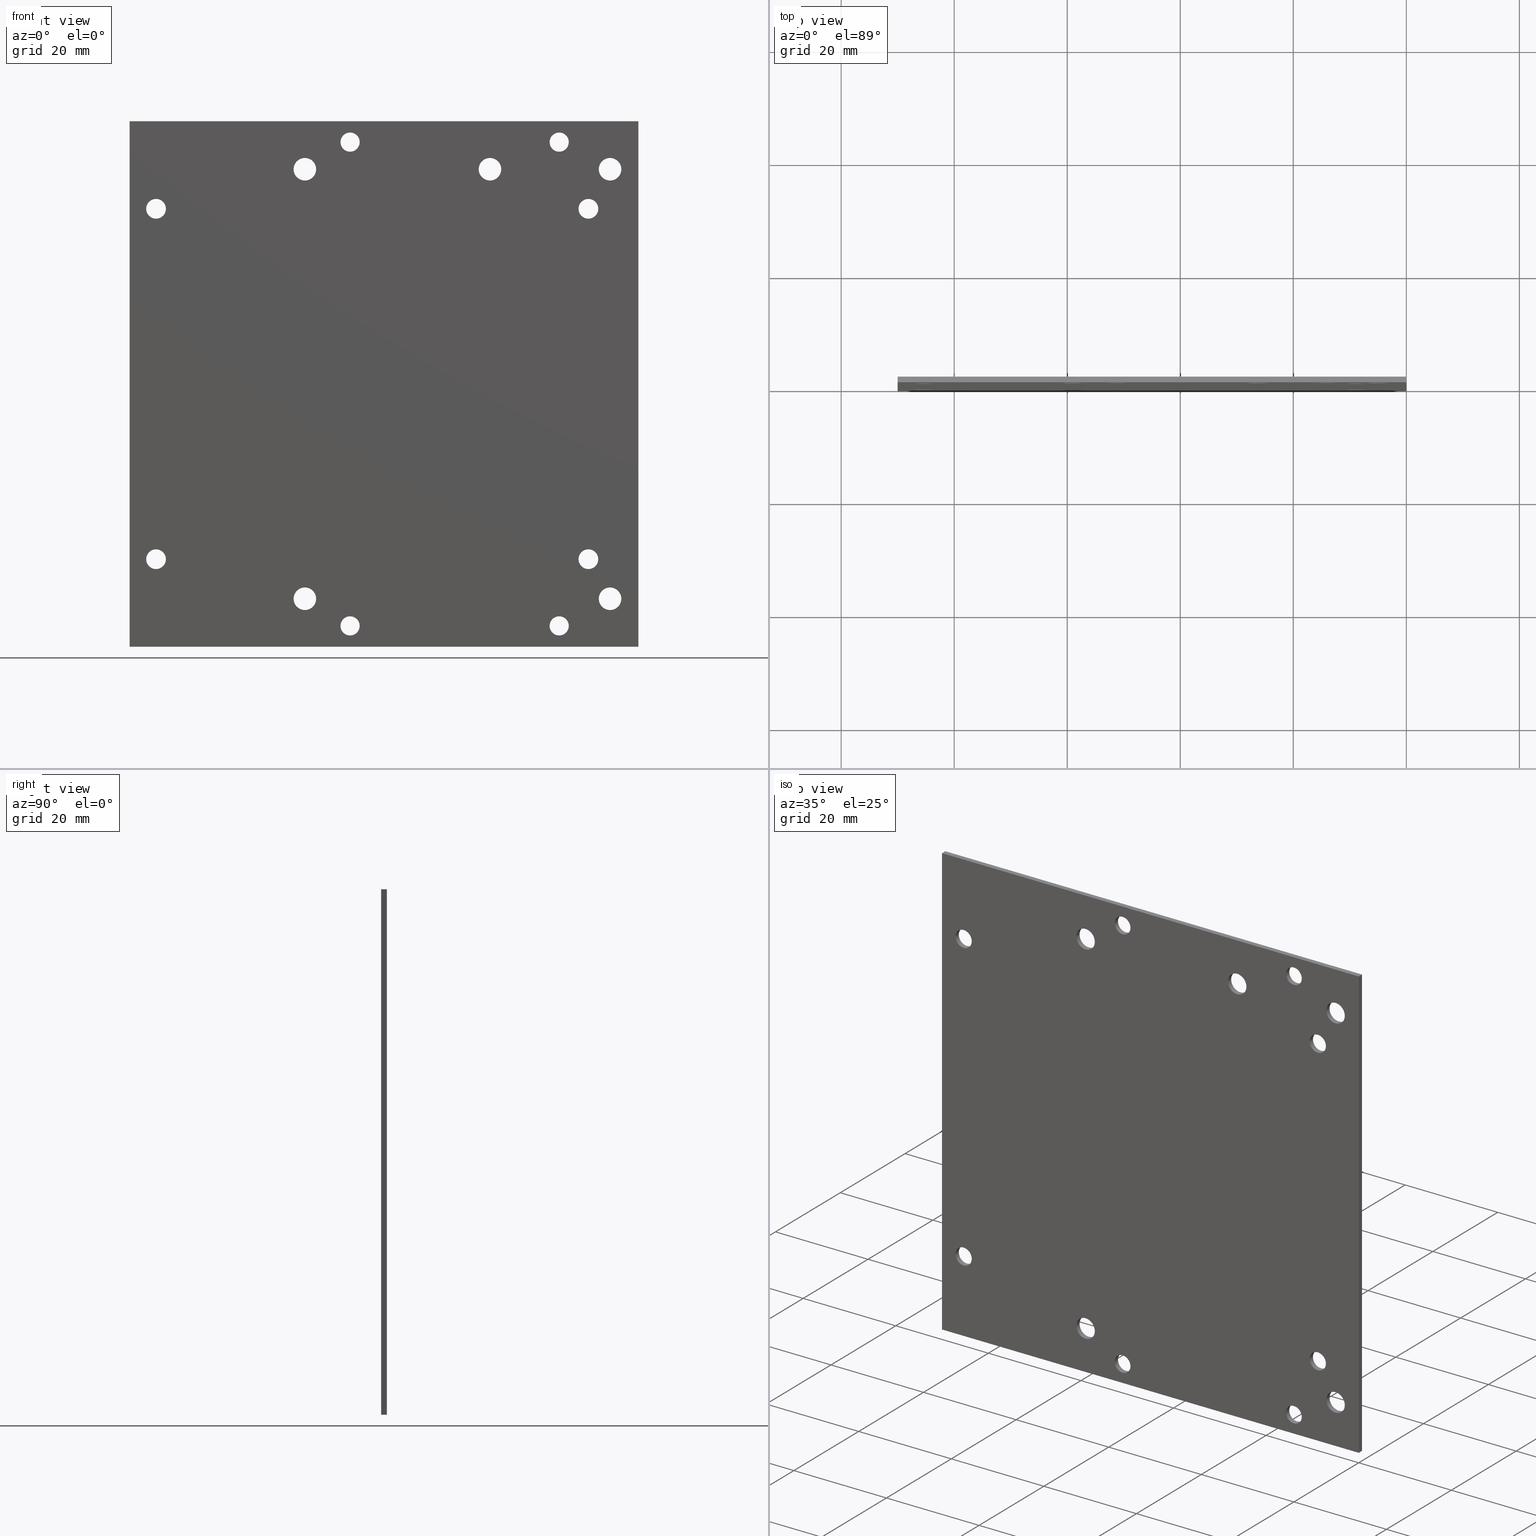
[diagram: canonical four-view strip — front | top / right | iso, engineering-drawing reading convention]
A machine part, canonical four-view strip (front | top / right | iso — engineering-drawing reading convention). The complete STEP part file that produces these views, byte-faithful:
ISO-10303-21;
HEADER;
/* Generated by software containing ST-Developer
 * from STEP Tools, Inc. (www.steptools.com) 
 */

FILE_DESCRIPTION(
/* description */ (''),
/* implementation_level */ '2;1');

FILE_NAME(
/* name */ 
'C:\\Users\\rishat\\Documents\\\X2\042404300439043B044B\X0\ \X2\0434043B044F\X0\ 
\X2\043E0442043F044004300432043A0438\X0\\\\X2\041C043E043404350440043D04380437043004460438044F\X0\\\
\X2\043F043E0434\X0\ 9\X2\0443044E\X0\ \X2\0441043504400438044E\X0\\\\X2\043F0435044004350445043E0434043D0430044F\X0\ 
\X2\043F0430043D0435043B044C\X0\ \X2\043F043E0434\X0\ SSD.stp',
/* time_stamp */ '2019-08-08T15:06:47+03:00',
/* author */ ('rishat'),
/* organization */ (''),
/* preprocessor_version */ 'ST-DEVELOPER v17',
/* originating_system */ 'Autodesk Inventor 2019',
/* authorisation */ '');

FILE_SCHEMA (('AUTOMOTIVE_DESIGN { 1 0 10303 214 3 1 1 }'));
ENDSEC;

DATA;
#10=MECHANICAL_DESIGN_GEOMETRIC_PRESENTATION_REPRESENTATION('',(#13),#696);
#11=SHAPE_REPRESENTATION_RELATIONSHIP('SRR','None',#703,#12);
#12=ADVANCED_BREP_SHAPE_REPRESENTATION('',(#14),#695);
#13=STYLED_ITEM('',(#712),#14);
#14=MANIFOLD_SOLID_BREP('\X2\04220432043504400434043E0435\X0\ \X2\04420435043B043E\X0\3',
#406);
#15=FACE_BOUND('',#73,.T.);
#16=FACE_BOUND('',#74,.T.);
#17=FACE_BOUND('',#75,.T.);
#18=FACE_BOUND('',#76,.T.);
#19=FACE_BOUND('',#77,.T.);
#20=FACE_BOUND('',#78,.T.);
#21=FACE_BOUND('',#79,.T.);
#22=FACE_BOUND('',#80,.T.);
#23=FACE_BOUND('',#81,.T.);
#24=FACE_BOUND('',#82,.T.);
#25=FACE_BOUND('',#83,.T.);
#26=FACE_BOUND('',#84,.T.);
#27=FACE_BOUND('',#85,.T.);
#28=FACE_BOUND('',#98,.T.);
#29=FACE_BOUND('',#99,.T.);
#30=FACE_BOUND('',#100,.T.);
#31=FACE_BOUND('',#101,.T.);
#32=FACE_BOUND('',#102,.T.);
#33=FACE_BOUND('',#103,.T.);
#34=FACE_BOUND('',#104,.T.);
#35=FACE_BOUND('',#105,.T.);
#36=FACE_BOUND('',#106,.T.);
#37=FACE_BOUND('',#107,.T.);
#38=FACE_BOUND('',#108,.T.);
#39=FACE_BOUND('',#109,.T.);
#40=FACE_BOUND('',#110,.T.);
#41=PLANE('',#438);
#42=PLANE('',#439);
#43=PLANE('',#440);
#44=PLANE('',#468);
#45=PLANE('',#469);
#46=PLANE('',#470);
#47=FACE_OUTER_BOUND('',#66,.T.);
#48=FACE_OUTER_BOUND('',#67,.T.);
#49=FACE_OUTER_BOUND('',#68,.T.);
#50=FACE_OUTER_BOUND('',#69,.T.);
#51=FACE_OUTER_BOUND('',#70,.T.);
#52=FACE_OUTER_BOUND('',#71,.T.);
#53=FACE_OUTER_BOUND('',#72,.T.);
#54=FACE_OUTER_BOUND('',#86,.T.);
#55=FACE_OUTER_BOUND('',#87,.T.);
#56=FACE_OUTER_BOUND('',#88,.T.);
#57=FACE_OUTER_BOUND('',#89,.T.);
#58=FACE_OUTER_BOUND('',#90,.T.);
#59=FACE_OUTER_BOUND('',#91,.T.);
#60=FACE_OUTER_BOUND('',#92,.T.);
#61=FACE_OUTER_BOUND('',#93,.T.);
#62=FACE_OUTER_BOUND('',#94,.T.);
#63=FACE_OUTER_BOUND('',#95,.T.);
#64=FACE_OUTER_BOUND('',#96,.T.);
#65=FACE_OUTER_BOUND('',#97,.T.);
#66=EDGE_LOOP('',(#272,#273,#274,#275));
#67=EDGE_LOOP('',(#276,#277,#278,#279));
#68=EDGE_LOOP('',(#280,#281,#282,#283));
#69=EDGE_LOOP('',(#284,#285,#286,#287));
#70=EDGE_LOOP('',(#288,#289,#290,#291));
#71=EDGE_LOOP('',(#292,#293,#294,#295));
#72=EDGE_LOOP('',(#296,#297,#298,#299));
#73=EDGE_LOOP('',(#300));
#74=EDGE_LOOP('',(#301));
#75=EDGE_LOOP('',(#302));
#76=EDGE_LOOP('',(#303));
#77=EDGE_LOOP('',(#304));
#78=EDGE_LOOP('',(#305));
#79=EDGE_LOOP('',(#306));
#80=EDGE_LOOP('',(#307));
#81=EDGE_LOOP('',(#308));
#82=EDGE_LOOP('',(#309));
#83=EDGE_LOOP('',(#310));
#84=EDGE_LOOP('',(#311));
#85=EDGE_LOOP('',(#312));
#86=EDGE_LOOP('',(#313,#314,#315,#316));
#87=EDGE_LOOP('',(#317,#318,#319,#320));
#88=EDGE_LOOP('',(#321,#322,#323,#324));
#89=EDGE_LOOP('',(#325,#326,#327,#328));
#90=EDGE_LOOP('',(#329,#330,#331,#332));
#91=EDGE_LOOP('',(#333,#334,#335,#336));
#92=EDGE_LOOP('',(#337,#338,#339,#340));
#93=EDGE_LOOP('',(#341,#342,#343,#344));
#94=EDGE_LOOP('',(#345,#346,#347,#348));
#95=EDGE_LOOP('',(#349,#350,#351,#352));
#96=EDGE_LOOP('',(#353,#354,#355,#356));
#97=EDGE_LOOP('',(#357,#358,#359,#360));
#98=EDGE_LOOP('',(#361));
#99=EDGE_LOOP('',(#362));
#100=EDGE_LOOP('',(#363));
#101=EDGE_LOOP('',(#364));
#102=EDGE_LOOP('',(#365));
#103=EDGE_LOOP('',(#366));
#104=EDGE_LOOP('',(#367));
#105=EDGE_LOOP('',(#368));
#106=EDGE_LOOP('',(#369));
#107=EDGE_LOOP('',(#370));
#108=EDGE_LOOP('',(#371));
#109=EDGE_LOOP('',(#372));
#110=EDGE_LOOP('',(#373));
#111=LINE('',#593,#136);
#112=LINE('',#599,#137);
#113=LINE('',#605,#138);
#114=LINE('',#611,#139);
#115=LINE('',#616,#140);
#116=LINE('',#618,#141);
#117=LINE('',#620,#142);
#118=LINE('',#621,#143);
#119=LINE('',#624,#144);
#120=LINE('',#626,#145);
#121=LINE('',#627,#146);
#122=LINE('',#630,#147);
#123=LINE('',#631,#148);
#124=LINE('',#652,#149);
#125=LINE('',#656,#150);
#126=LINE('',#660,#151);
#127=LINE('',#664,#152);
#128=LINE('',#668,#153);
#129=LINE('',#672,#154);
#130=LINE('',#676,#155);
#131=LINE('',#680,#156);
#132=LINE('',#684,#157);
#133=LINE('',#688,#158);
#134=LINE('',#689,#159);
#135=LINE('',#691,#160);
#136=VECTOR('',#477,1.7);
#137=VECTOR('',#484,1.7);
#138=VECTOR('',#491,1.7);
#139=VECTOR('',#498,1.7);
#140=VECTOR('',#503,10.);
#141=VECTOR('',#504,10.);
#142=VECTOR('',#505,10.);
#143=VECTOR('',#506,10.);
#144=VECTOR('',#509,10.);
#145=VECTOR('',#510,10.);
#146=VECTOR('',#511,10.);
#147=VECTOR('',#514,10.);
#148=VECTOR('',#515,10.);
#149=VECTOR('',#536,2.);
#150=VECTOR('',#541,2.);
#151=VECTOR('',#546,2.);
#152=VECTOR('',#551,1.75);
#153=VECTOR('',#556,1.75);
#154=VECTOR('',#561,1.75);
#155=VECTOR('',#566,1.75);
#156=VECTOR('',#571,2.);
#157=VECTOR('',#576,2.);
#158=VECTOR('',#581,10.);
#159=VECTOR('',#582,10.);
#160=VECTOR('',#585,10.);
#161=CIRCLE('',#427,1.7);
#162=CIRCLE('',#428,1.7);
#163=CIRCLE('',#430,1.7);
#164=CIRCLE('',#431,1.7);
#165=CIRCLE('',#433,1.7);
#166=CIRCLE('',#434,1.7);
#167=CIRCLE('',#436,1.7);
#168=CIRCLE('',#437,1.7);
#169=CIRCLE('',#441,2.);
#170=CIRCLE('',#442,2.);
#171=CIRCLE('',#443,1.75);
#172=CIRCLE('',#444,1.75);
#173=CIRCLE('',#445,1.75);
#174=CIRCLE('',#446,1.75);
#175=CIRCLE('',#447,2.);
#176=CIRCLE('',#448,2.);
#177=CIRCLE('',#449,2.);
#178=CIRCLE('',#451,2.);
#179=CIRCLE('',#453,2.);
#180=CIRCLE('',#455,2.);
#181=CIRCLE('',#457,1.75);
#182=CIRCLE('',#459,1.75);
#183=CIRCLE('',#461,1.75);
#184=CIRCLE('',#463,1.75);
#185=CIRCLE('',#465,2.);
#186=CIRCLE('',#467,2.);
#187=VERTEX_POINT('',#590);
#188=VERTEX_POINT('',#592);
#189=VERTEX_POINT('',#596);
#190=VERTEX_POINT('',#598);
#191=VERTEX_POINT('',#602);
#192=VERTEX_POINT('',#604);
#193=VERTEX_POINT('',#608);
#194=VERTEX_POINT('',#610);
#195=VERTEX_POINT('',#614);
#196=VERTEX_POINT('',#615);
#197=VERTEX_POINT('',#617);
#198=VERTEX_POINT('',#619);
#199=VERTEX_POINT('',#623);
#200=VERTEX_POINT('',#625);
#201=VERTEX_POINT('',#629);
#202=VERTEX_POINT('',#632);
#203=VERTEX_POINT('',#634);
#204=VERTEX_POINT('',#636);
#205=VERTEX_POINT('',#638);
#206=VERTEX_POINT('',#640);
#207=VERTEX_POINT('',#642);
#208=VERTEX_POINT('',#644);
#209=VERTEX_POINT('',#646);
#210=VERTEX_POINT('',#648);
#211=VERTEX_POINT('',#651);
#212=VERTEX_POINT('',#655);
#213=VERTEX_POINT('',#659);
#214=VERTEX_POINT('',#663);
#215=VERTEX_POINT('',#667);
#216=VERTEX_POINT('',#671);
#217=VERTEX_POINT('',#675);
#218=VERTEX_POINT('',#679);
#219=VERTEX_POINT('',#683);
#220=VERTEX_POINT('',#687);
#221=EDGE_CURVE('',#187,#187,#161,.T.);
#222=EDGE_CURVE('',#187,#188,#111,.T.);
#223=EDGE_CURVE('',#188,#188,#162,.T.);
#224=EDGE_CURVE('',#189,#189,#163,.T.);
#225=EDGE_CURVE('',#189,#190,#112,.T.);
#226=EDGE_CURVE('',#190,#190,#164,.T.);
#227=EDGE_CURVE('',#191,#191,#165,.T.);
#228=EDGE_CURVE('',#191,#192,#113,.T.);
#229=EDGE_CURVE('',#192,#192,#166,.T.);
#230=EDGE_CURVE('',#193,#193,#167,.T.);
#231=EDGE_CURVE('',#193,#194,#114,.T.);
#232=EDGE_CURVE('',#194,#194,#168,.T.);
#233=EDGE_CURVE('',#195,#196,#115,.T.);
#234=EDGE_CURVE('',#197,#195,#116,.T.);
#235=EDGE_CURVE('',#198,#197,#117,.T.);
#236=EDGE_CURVE('',#196,#198,#118,.T.);
#237=EDGE_CURVE('',#198,#199,#119,.T.);
#238=EDGE_CURVE('',#199,#200,#120,.T.);
#239=EDGE_CURVE('',#196,#200,#121,.T.);
#240=EDGE_CURVE('',#201,#197,#122,.T.);
#241=EDGE_CURVE('',#199,#201,#123,.T.);
#242=EDGE_CURVE('',#202,#202,#169,.T.);
#243=EDGE_CURVE('',#203,#203,#170,.T.);
#244=EDGE_CURVE('',#204,#204,#171,.T.);
#245=EDGE_CURVE('',#205,#205,#172,.T.);
#246=EDGE_CURVE('',#206,#206,#173,.T.);
#247=EDGE_CURVE('',#207,#207,#174,.T.);
#248=EDGE_CURVE('',#208,#208,#175,.T.);
#249=EDGE_CURVE('',#209,#209,#176,.T.);
#250=EDGE_CURVE('',#210,#210,#177,.T.);
#251=EDGE_CURVE('',#210,#211,#124,.T.);
#252=EDGE_CURVE('',#211,#211,#178,.T.);
#253=EDGE_CURVE('',#209,#212,#125,.T.);
#254=EDGE_CURVE('',#212,#212,#179,.T.);
#255=EDGE_CURVE('',#208,#213,#126,.T.);
#256=EDGE_CURVE('',#213,#213,#180,.T.);
#257=EDGE_CURVE('',#207,#214,#127,.T.);
#258=EDGE_CURVE('',#214,#214,#181,.T.);
#259=EDGE_CURVE('',#206,#215,#128,.T.);
#260=EDGE_CURVE('',#215,#215,#182,.T.);
#261=EDGE_CURVE('',#205,#216,#129,.T.);
#262=EDGE_CURVE('',#216,#216,#183,.T.);
#263=EDGE_CURVE('',#204,#217,#130,.T.);
#264=EDGE_CURVE('',#217,#217,#184,.T.);
#265=EDGE_CURVE('',#203,#218,#131,.T.);
#266=EDGE_CURVE('',#218,#218,#185,.T.);
#267=EDGE_CURVE('',#202,#219,#132,.T.);
#268=EDGE_CURVE('',#219,#219,#186,.T.);
#269=EDGE_CURVE('',#220,#195,#133,.T.);
#270=EDGE_CURVE('',#201,#220,#134,.T.);
#271=EDGE_CURVE('',#200,#220,#135,.T.);
#272=ORIENTED_EDGE('',*,*,#221,.F.);
#273=ORIENTED_EDGE('',*,*,#222,.T.);
#274=ORIENTED_EDGE('',*,*,#223,.F.);
#275=ORIENTED_EDGE('',*,*,#222,.F.);
#276=ORIENTED_EDGE('',*,*,#224,.F.);
#277=ORIENTED_EDGE('',*,*,#225,.T.);
#278=ORIENTED_EDGE('',*,*,#226,.F.);
#279=ORIENTED_EDGE('',*,*,#225,.F.);
#280=ORIENTED_EDGE('',*,*,#227,.F.);
#281=ORIENTED_EDGE('',*,*,#228,.T.);
#282=ORIENTED_EDGE('',*,*,#229,.F.);
#283=ORIENTED_EDGE('',*,*,#228,.F.);
#284=ORIENTED_EDGE('',*,*,#230,.F.);
#285=ORIENTED_EDGE('',*,*,#231,.T.);
#286=ORIENTED_EDGE('',*,*,#232,.F.);
#287=ORIENTED_EDGE('',*,*,#231,.F.);
#288=ORIENTED_EDGE('',*,*,#233,.F.);
#289=ORIENTED_EDGE('',*,*,#234,.F.);
#290=ORIENTED_EDGE('',*,*,#235,.F.);
#291=ORIENTED_EDGE('',*,*,#236,.F.);
#292=ORIENTED_EDGE('',*,*,#236,.T.);
#293=ORIENTED_EDGE('',*,*,#237,.T.);
#294=ORIENTED_EDGE('',*,*,#238,.T.);
#295=ORIENTED_EDGE('',*,*,#239,.F.);
#296=ORIENTED_EDGE('',*,*,#235,.T.);
#297=ORIENTED_EDGE('',*,*,#240,.F.);
#298=ORIENTED_EDGE('',*,*,#241,.F.);
#299=ORIENTED_EDGE('',*,*,#237,.F.);
#300=ORIENTED_EDGE('',*,*,#223,.T.);
#301=ORIENTED_EDGE('',*,*,#226,.T.);
#302=ORIENTED_EDGE('',*,*,#229,.T.);
#303=ORIENTED_EDGE('',*,*,#232,.T.);
#304=ORIENTED_EDGE('',*,*,#242,.T.);
#305=ORIENTED_EDGE('',*,*,#243,.T.);
#306=ORIENTED_EDGE('',*,*,#244,.T.);
#307=ORIENTED_EDGE('',*,*,#245,.T.);
#308=ORIENTED_EDGE('',*,*,#246,.T.);
#309=ORIENTED_EDGE('',*,*,#247,.T.);
#310=ORIENTED_EDGE('',*,*,#248,.T.);
#311=ORIENTED_EDGE('',*,*,#249,.T.);
#312=ORIENTED_EDGE('',*,*,#250,.T.);
#313=ORIENTED_EDGE('',*,*,#250,.F.);
#314=ORIENTED_EDGE('',*,*,#251,.T.);
#315=ORIENTED_EDGE('',*,*,#252,.F.);
#316=ORIENTED_EDGE('',*,*,#251,.F.);
#317=ORIENTED_EDGE('',*,*,#249,.F.);
#318=ORIENTED_EDGE('',*,*,#253,.T.);
#319=ORIENTED_EDGE('',*,*,#254,.F.);
#320=ORIENTED_EDGE('',*,*,#253,.F.);
#321=ORIENTED_EDGE('',*,*,#248,.F.);
#322=ORIENTED_EDGE('',*,*,#255,.T.);
#323=ORIENTED_EDGE('',*,*,#256,.F.);
#324=ORIENTED_EDGE('',*,*,#255,.F.);
#325=ORIENTED_EDGE('',*,*,#247,.F.);
#326=ORIENTED_EDGE('',*,*,#257,.T.);
#327=ORIENTED_EDGE('',*,*,#258,.F.);
#328=ORIENTED_EDGE('',*,*,#257,.F.);
#329=ORIENTED_EDGE('',*,*,#246,.F.);
#330=ORIENTED_EDGE('',*,*,#259,.T.);
#331=ORIENTED_EDGE('',*,*,#260,.F.);
#332=ORIENTED_EDGE('',*,*,#259,.F.);
#333=ORIENTED_EDGE('',*,*,#245,.F.);
#334=ORIENTED_EDGE('',*,*,#261,.T.);
#335=ORIENTED_EDGE('',*,*,#262,.F.);
#336=ORIENTED_EDGE('',*,*,#261,.F.);
#337=ORIENTED_EDGE('',*,*,#244,.F.);
#338=ORIENTED_EDGE('',*,*,#263,.T.);
#339=ORIENTED_EDGE('',*,*,#264,.F.);
#340=ORIENTED_EDGE('',*,*,#263,.F.);
#341=ORIENTED_EDGE('',*,*,#243,.F.);
#342=ORIENTED_EDGE('',*,*,#265,.T.);
#343=ORIENTED_EDGE('',*,*,#266,.F.);
#344=ORIENTED_EDGE('',*,*,#265,.F.);
#345=ORIENTED_EDGE('',*,*,#242,.F.);
#346=ORIENTED_EDGE('',*,*,#267,.T.);
#347=ORIENTED_EDGE('',*,*,#268,.F.);
#348=ORIENTED_EDGE('',*,*,#267,.F.);
#349=ORIENTED_EDGE('',*,*,#234,.T.);
#350=ORIENTED_EDGE('',*,*,#269,.F.);
#351=ORIENTED_EDGE('',*,*,#270,.F.);
#352=ORIENTED_EDGE('',*,*,#240,.T.);
#353=ORIENTED_EDGE('',*,*,#241,.T.);
#354=ORIENTED_EDGE('',*,*,#270,.T.);
#355=ORIENTED_EDGE('',*,*,#271,.F.);
#356=ORIENTED_EDGE('',*,*,#238,.F.);
#357=ORIENTED_EDGE('',*,*,#233,.T.);
#358=ORIENTED_EDGE('',*,*,#239,.T.);
#359=ORIENTED_EDGE('',*,*,#271,.T.);
#360=ORIENTED_EDGE('',*,*,#269,.T.);
#361=ORIENTED_EDGE('',*,*,#221,.T.);
#362=ORIENTED_EDGE('',*,*,#224,.T.);
#363=ORIENTED_EDGE('',*,*,#227,.T.);
#364=ORIENTED_EDGE('',*,*,#230,.T.);
#365=ORIENTED_EDGE('',*,*,#252,.T.);
#366=ORIENTED_EDGE('',*,*,#254,.T.);
#367=ORIENTED_EDGE('',*,*,#256,.T.);
#368=ORIENTED_EDGE('',*,*,#258,.T.);
#369=ORIENTED_EDGE('',*,*,#260,.T.);
#370=ORIENTED_EDGE('',*,*,#262,.T.);
#371=ORIENTED_EDGE('',*,*,#264,.T.);
#372=ORIENTED_EDGE('',*,*,#266,.T.);
#373=ORIENTED_EDGE('',*,*,#268,.T.);
#374=CYLINDRICAL_SURFACE('',#426,1.7);
#375=CYLINDRICAL_SURFACE('',#429,1.7);
#376=CYLINDRICAL_SURFACE('',#432,1.7);
#377=CYLINDRICAL_SURFACE('',#435,1.7);
#378=CYLINDRICAL_SURFACE('',#450,2.);
#379=CYLINDRICAL_SURFACE('',#452,2.);
#380=CYLINDRICAL_SURFACE('',#454,2.);
#381=CYLINDRICAL_SURFACE('',#456,1.75);
#382=CYLINDRICAL_SURFACE('',#458,1.75);
#383=CYLINDRICAL_SURFACE('',#460,1.75);
#384=CYLINDRICAL_SURFACE('',#462,1.75);
#385=CYLINDRICAL_SURFACE('',#464,2.);
#386=CYLINDRICAL_SURFACE('',#466,2.);
#387=ADVANCED_FACE('',(#47),#374,.F.);
#388=ADVANCED_FACE('',(#48),#375,.F.);
#389=ADVANCED_FACE('',(#49),#376,.F.);
#390=ADVANCED_FACE('',(#50),#377,.F.);
#391=ADVANCED_FACE('',(#51),#41,.F.);
#392=ADVANCED_FACE('',(#52),#42,.T.);
#393=ADVANCED_FACE('',(#53,#15,#16,#17,#18,#19,#20,#21,#22,#23,#24,#25,
#26,#27),#43,.T.);
#394=ADVANCED_FACE('',(#54),#378,.F.);
#395=ADVANCED_FACE('',(#55),#379,.F.);
#396=ADVANCED_FACE('',(#56),#380,.F.);
#397=ADVANCED_FACE('',(#57),#381,.F.);
#398=ADVANCED_FACE('',(#58),#382,.F.);
#399=ADVANCED_FACE('',(#59),#383,.F.);
#400=ADVANCED_FACE('',(#60),#384,.F.);
#401=ADVANCED_FACE('',(#61),#385,.F.);
#402=ADVANCED_FACE('',(#62),#386,.F.);
#403=ADVANCED_FACE('',(#63),#44,.T.);
#404=ADVANCED_FACE('',(#64),#45,.T.);
#405=ADVANCED_FACE('',(#65,#28,#29,#30,#31,#32,#33,#34,#35,#36,#37,#38,
#39,#40),#46,.T.);
#406=CLOSED_SHELL('',(#387,#388,#389,#390,#391,#392,#393,#394,#395,#396,
#397,#398,#399,#400,#401,#402,#403,#404,#405));
#407=DERIVED_UNIT_ELEMENT(#409,1.);
#408=DERIVED_UNIT_ELEMENT(#698,3.);
#409=(
MASS_UNIT()
NAMED_UNIT(*)
SI_UNIT($,.GRAM.)
);
#410=DERIVED_UNIT((#407,#408));
#411=MEASURE_REPRESENTATION_ITEM('density measure',
POSITIVE_RATIO_MEASURE(1.),#410);
#412=PROPERTY_DEFINITION_REPRESENTATION(#417,#414);
#413=PROPERTY_DEFINITION_REPRESENTATION(#418,#415);
#414=REPRESENTATION('material name',(#416),#695);
#415=REPRESENTATION('density',(#411),#695);
#416=DESCRIPTIVE_REPRESENTATION_ITEM('\X2\04220438043F043E0432044B0435\X0\',
'\X2\04220438043F043E0432044B0435\X0\');
#417=PROPERTY_DEFINITION('material property','material name',#705);
#418=PROPERTY_DEFINITION('material property','density of part',#705);
#419=DATE_TIME_ROLE('creation_date');
#420=APPLIED_DATE_AND_TIME_ASSIGNMENT(#421,#419,(#705));
#421=DATE_AND_TIME(#422,#423);
#422=CALENDAR_DATE(2019,7,8);
#423=LOCAL_TIME(17,30,15.,#424);
#424=COORDINATED_UNIVERSAL_TIME_OFFSET(0,0,.BEHIND.);
#425=AXIS2_PLACEMENT_3D('placement',#588,#471,#472);
#426=AXIS2_PLACEMENT_3D('',#589,#473,#474);
#427=AXIS2_PLACEMENT_3D('',#591,#475,#476);
#428=AXIS2_PLACEMENT_3D('',#594,#478,#479);
#429=AXIS2_PLACEMENT_3D('',#595,#480,#481);
#430=AXIS2_PLACEMENT_3D('',#597,#482,#483);
#431=AXIS2_PLACEMENT_3D('',#600,#485,#486);
#432=AXIS2_PLACEMENT_3D('',#601,#487,#488);
#433=AXIS2_PLACEMENT_3D('',#603,#489,#490);
#434=AXIS2_PLACEMENT_3D('',#606,#492,#493);
#435=AXIS2_PLACEMENT_3D('',#607,#494,#495);
#436=AXIS2_PLACEMENT_3D('',#609,#496,#497);
#437=AXIS2_PLACEMENT_3D('',#612,#499,#500);
#438=AXIS2_PLACEMENT_3D('',#613,#501,#502);
#439=AXIS2_PLACEMENT_3D('',#622,#507,#508);
#440=AXIS2_PLACEMENT_3D('',#628,#512,#513);
#441=AXIS2_PLACEMENT_3D('',#633,#516,#517);
#442=AXIS2_PLACEMENT_3D('',#635,#518,#519);
#443=AXIS2_PLACEMENT_3D('',#637,#520,#521);
#444=AXIS2_PLACEMENT_3D('',#639,#522,#523);
#445=AXIS2_PLACEMENT_3D('',#641,#524,#525);
#446=AXIS2_PLACEMENT_3D('',#643,#526,#527);
#447=AXIS2_PLACEMENT_3D('',#645,#528,#529);
#448=AXIS2_PLACEMENT_3D('',#647,#530,#531);
#449=AXIS2_PLACEMENT_3D('',#649,#532,#533);
#450=AXIS2_PLACEMENT_3D('',#650,#534,#535);
#451=AXIS2_PLACEMENT_3D('',#653,#537,#538);
#452=AXIS2_PLACEMENT_3D('',#654,#539,#540);
#453=AXIS2_PLACEMENT_3D('',#657,#542,#543);
#454=AXIS2_PLACEMENT_3D('',#658,#544,#545);
#455=AXIS2_PLACEMENT_3D('',#661,#547,#548);
#456=AXIS2_PLACEMENT_3D('',#662,#549,#550);
#457=AXIS2_PLACEMENT_3D('',#665,#552,#553);
#458=AXIS2_PLACEMENT_3D('',#666,#554,#555);
#459=AXIS2_PLACEMENT_3D('',#669,#557,#558);
#460=AXIS2_PLACEMENT_3D('',#670,#559,#560);
#461=AXIS2_PLACEMENT_3D('',#673,#562,#563);
#462=AXIS2_PLACEMENT_3D('',#674,#564,#565);
#463=AXIS2_PLACEMENT_3D('',#677,#567,#568);
#464=AXIS2_PLACEMENT_3D('',#678,#569,#570);
#465=AXIS2_PLACEMENT_3D('',#681,#572,#573);
#466=AXIS2_PLACEMENT_3D('',#682,#574,#575);
#467=AXIS2_PLACEMENT_3D('',#685,#577,#578);
#468=AXIS2_PLACEMENT_3D('',#686,#579,#580);
#469=AXIS2_PLACEMENT_3D('',#690,#583,#584);
#470=AXIS2_PLACEMENT_3D('',#692,#586,#587);
#471=DIRECTION('axis',(0.,0.,1.));
#472=DIRECTION('refdir',(1.,0.,0.));
#473=DIRECTION('center_axis',(0.,-1.,0.));
#474=DIRECTION('ref_axis',(-1.,0.,0.));
#475=DIRECTION('center_axis',(0.,-1.,0.));
#476=DIRECTION('ref_axis',(-1.,0.,0.));
#477=DIRECTION('',(0.,-1.,0.));
#478=DIRECTION('center_axis',(0.,1.,0.));
#479=DIRECTION('ref_axis',(-1.,0.,0.));
#480=DIRECTION('center_axis',(0.,-1.,0.));
#481=DIRECTION('ref_axis',(-1.,0.,0.));
#482=DIRECTION('center_axis',(0.,-1.,0.));
#483=DIRECTION('ref_axis',(-1.,0.,0.));
#484=DIRECTION('',(0.,-1.,0.));
#485=DIRECTION('center_axis',(0.,1.,0.));
#486=DIRECTION('ref_axis',(-1.,0.,0.));
#487=DIRECTION('center_axis',(0.,-1.,0.));
#488=DIRECTION('ref_axis',(-1.,0.,0.));
#489=DIRECTION('center_axis',(0.,-1.,0.));
#490=DIRECTION('ref_axis',(-1.,0.,0.));
#491=DIRECTION('',(0.,-1.,0.));
#492=DIRECTION('center_axis',(0.,1.,0.));
#493=DIRECTION('ref_axis',(-1.,0.,0.));
#494=DIRECTION('center_axis',(0.,-1.,0.));
#495=DIRECTION('ref_axis',(-1.,0.,0.));
#496=DIRECTION('center_axis',(0.,-1.,0.));
#497=DIRECTION('ref_axis',(-1.,0.,0.));
#498=DIRECTION('',(0.,-1.,0.));
#499=DIRECTION('center_axis',(0.,1.,0.));
#500=DIRECTION('ref_axis',(-1.,0.,0.));
#501=DIRECTION('center_axis',(1.,0.,0.));
#502=DIRECTION('ref_axis',(0.,0.,1.));
#503=DIRECTION('',(0.,0.,1.));
#504=DIRECTION('',(0.,1.,0.));
#505=DIRECTION('',(0.,0.,-1.));
#506=DIRECTION('',(0.,-1.,0.));
#507=DIRECTION('center_axis',(0.,0.,1.));
#508=DIRECTION('ref_axis',(1.,0.,0.));
#509=DIRECTION('',(1.,0.,0.));
#510=DIRECTION('',(0.,1.,0.));
#511=DIRECTION('',(1.,0.,0.));
#512=DIRECTION('center_axis',(0.,-1.,0.));
#513=DIRECTION('ref_axis',(0.,0.,-1.));
#514=DIRECTION('',(-1.,0.,-1.77635683940025E-16));
#515=DIRECTION('',(9.2807165320119E-32,0.,-1.));
#516=DIRECTION('center_axis',(0.,1.,0.));
#517=DIRECTION('ref_axis',(1.,0.,0.));
#518=DIRECTION('center_axis',(0.,1.,0.));
#519=DIRECTION('ref_axis',(1.,0.,0.));
#520=DIRECTION('center_axis',(0.,1.,0.));
#521=DIRECTION('ref_axis',(1.,0.,0.));
#522=DIRECTION('center_axis',(0.,1.,0.));
#523=DIRECTION('ref_axis',(1.,0.,0.));
#524=DIRECTION('center_axis',(0.,1.,0.));
#525=DIRECTION('ref_axis',(1.,0.,0.));
#526=DIRECTION('center_axis',(0.,1.,0.));
#527=DIRECTION('ref_axis',(1.,0.,0.));
#528=DIRECTION('center_axis',(0.,1.,0.));
#529=DIRECTION('ref_axis',(1.,0.,0.));
#530=DIRECTION('center_axis',(0.,1.,0.));
#531=DIRECTION('ref_axis',(1.,0.,0.));
#532=DIRECTION('center_axis',(0.,1.,0.));
#533=DIRECTION('ref_axis',(1.,0.,0.));
#534=DIRECTION('center_axis',(0.,1.,0.));
#535=DIRECTION('ref_axis',(1.,0.,0.));
#536=DIRECTION('',(0.,1.,0.));
#537=DIRECTION('center_axis',(0.,-1.,0.));
#538=DIRECTION('ref_axis',(1.,0.,0.));
#539=DIRECTION('center_axis',(0.,1.,0.));
#540=DIRECTION('ref_axis',(1.,0.,0.));
#541=DIRECTION('',(0.,1.,0.));
#542=DIRECTION('center_axis',(0.,-1.,0.));
#543=DIRECTION('ref_axis',(1.,0.,0.));
#544=DIRECTION('center_axis',(0.,1.,0.));
#545=DIRECTION('ref_axis',(1.,0.,0.));
#546=DIRECTION('',(0.,1.,0.));
#547=DIRECTION('center_axis',(0.,-1.,0.));
#548=DIRECTION('ref_axis',(1.,0.,0.));
#549=DIRECTION('center_axis',(0.,1.,0.));
#550=DIRECTION('ref_axis',(1.,0.,0.));
#551=DIRECTION('',(0.,1.,0.));
#552=DIRECTION('center_axis',(0.,-1.,0.));
#553=DIRECTION('ref_axis',(1.,0.,0.));
#554=DIRECTION('center_axis',(0.,1.,0.));
#555=DIRECTION('ref_axis',(1.,0.,0.));
#556=DIRECTION('',(0.,1.,0.));
#557=DIRECTION('center_axis',(0.,-1.,0.));
#558=DIRECTION('ref_axis',(1.,0.,0.));
#559=DIRECTION('center_axis',(0.,1.,0.));
#560=DIRECTION('ref_axis',(1.,0.,0.));
#561=DIRECTION('',(0.,1.,0.));
#562=DIRECTION('center_axis',(0.,-1.,0.));
#563=DIRECTION('ref_axis',(1.,0.,0.));
#564=DIRECTION('center_axis',(0.,1.,0.));
#565=DIRECTION('ref_axis',(1.,0.,0.));
#566=DIRECTION('',(0.,1.,0.));
#567=DIRECTION('center_axis',(0.,-1.,0.));
#568=DIRECTION('ref_axis',(1.,0.,0.));
#569=DIRECTION('center_axis',(0.,1.,0.));
#570=DIRECTION('ref_axis',(1.,0.,0.));
#571=DIRECTION('',(0.,1.,0.));
#572=DIRECTION('center_axis',(0.,-1.,0.));
#573=DIRECTION('ref_axis',(1.,0.,0.));
#574=DIRECTION('center_axis',(0.,1.,0.));
#575=DIRECTION('ref_axis',(1.,0.,0.));
#576=DIRECTION('',(0.,1.,0.));
#577=DIRECTION('center_axis',(0.,-1.,0.));
#578=DIRECTION('ref_axis',(1.,0.,0.));
#579=DIRECTION('center_axis',(1.77635683940025E-16,0.,-1.));
#580=DIRECTION('ref_axis',(-1.,0.,-1.77635683940025E-16));
#581=DIRECTION('',(-1.,0.,-1.77635683940025E-16));
#582=DIRECTION('',(0.,1.,0.));
#583=DIRECTION('center_axis',(1.,0.,9.2807165320119E-32));
#584=DIRECTION('ref_axis',(9.2807165320119E-32,0.,-1.));
#585=DIRECTION('',(0.,0.,-1.));
#586=DIRECTION('center_axis',(0.,1.,0.));
#587=DIRECTION('ref_axis',(0.,0.,1.));
#588=CARTESIAN_POINT('',(0.,0.,0.));
#589=CARTESIAN_POINT('Origin',(-14.,1.,0.300000000000011));
#590=CARTESIAN_POINT('',(-12.3,1.,0.300000000000011));
#591=CARTESIAN_POINT('Origin',(-14.,1.,0.300000000000011));
#592=CARTESIAN_POINT('',(-12.3,0.,0.300000000000011));
#593=CARTESIAN_POINT('',(-12.3,1.,0.300000000000012));
#594=CARTESIAN_POINT('Origin',(-14.,0.,0.300000000000011));
#595=CARTESIAN_POINT('Origin',(-14.,1.,-85.3));
#596=CARTESIAN_POINT('',(-12.3,1.,-85.3));
#597=CARTESIAN_POINT('Origin',(-14.,1.,-85.3));
#598=CARTESIAN_POINT('',(-12.3,0.,-85.3));
#599=CARTESIAN_POINT('',(-12.3,1.,-85.3));
#600=CARTESIAN_POINT('Origin',(-14.,0.,-85.3));
#601=CARTESIAN_POINT('Origin',(-51.,1.,-85.3));
#602=CARTESIAN_POINT('',(-49.3,1.,-85.3));
#603=CARTESIAN_POINT('Origin',(-51.,1.,-85.3));
#604=CARTESIAN_POINT('',(-49.3,0.,-85.3));
#605=CARTESIAN_POINT('',(-49.3,1.,-85.3));
#606=CARTESIAN_POINT('Origin',(-51.,0.,-85.3));
#607=CARTESIAN_POINT('Origin',(-51.,1.,0.300000000000047));
#608=CARTESIAN_POINT('',(-49.3,1.,0.300000000000047));
#609=CARTESIAN_POINT('Origin',(-51.,1.,0.300000000000047));
#610=CARTESIAN_POINT('',(-49.3,0.,0.300000000000047));
#611=CARTESIAN_POINT('',(-49.3,1.,0.300000000000047));
#612=CARTESIAN_POINT('Origin',(-51.,0.,0.300000000000047));
#613=CARTESIAN_POINT('Origin',(-90.,1.,-89.));
#614=CARTESIAN_POINT('',(-90.,1.,-89.));
#615=CARTESIAN_POINT('',(-90.,1.,4.));
#616=CARTESIAN_POINT('',(-90.,1.,-65.75));
#617=CARTESIAN_POINT('',(-90.,0.,-89.));
#618=CARTESIAN_POINT('',(-90.,0.5,-89.));
#619=CARTESIAN_POINT('',(-90.,0.,4.));
#620=CARTESIAN_POINT('',(-90.,0.,-65.75));
#621=CARTESIAN_POINT('',(-90.,0.5,4.));
#622=CARTESIAN_POINT('Origin',(-100.,0.,4.));
#623=CARTESIAN_POINT('',(0.,0.,4.));
#624=CARTESIAN_POINT('',(-100.,0.,4.));
#625=CARTESIAN_POINT('',(0.,1.,4.));
#626=CARTESIAN_POINT('',(0.,0.,4.));
#627=CARTESIAN_POINT('',(-100.,1.,4.));
#628=CARTESIAN_POINT('Origin',(-50.,0.,-42.5));
#629=CARTESIAN_POINT('',(7.88860905221012E-30,0.,-89.));
#630=CARTESIAN_POINT('',(7.88860905221012E-30,0.,-89.));
#631=CARTESIAN_POINT('',(0.,0.,0.));
#632=CARTESIAN_POINT('',(-7.,0.,-80.5));
#633=CARTESIAN_POINT('Origin',(-5.,0.,-80.5));
#634=CARTESIAN_POINT('',(-7.,0.,-4.49999999999999));
#635=CARTESIAN_POINT('Origin',(-5.,0.,-4.49999999999999));
#636=CARTESIAN_POINT('',(-10.5845135949853,0.,-73.5));
#637=CARTESIAN_POINT('Origin',(-8.83451359498527,0.,-73.5));
#638=CARTESIAN_POINT('',(-10.5845135949853,0.,-11.5));
#639=CARTESIAN_POINT('Origin',(-8.83451359498527,0.,-11.5));
#640=CARTESIAN_POINT('',(-87.0845135949853,0.,-73.5));
#641=CARTESIAN_POINT('Origin',(-85.3345135949853,0.,-73.5));
#642=CARTESIAN_POINT('',(-87.0845135949853,0.,-11.5));
#643=CARTESIAN_POINT('Origin',(-85.3345135949853,0.,-11.5));
#644=CARTESIAN_POINT('',(-28.25,0.,-4.49999999999999));
#645=CARTESIAN_POINT('Origin',(-26.25,0.,-4.49999999999999));
#646=CARTESIAN_POINT('',(-61.,0.,-80.5));
#647=CARTESIAN_POINT('Origin',(-59.,0.,-80.5));
#648=CARTESIAN_POINT('',(-61.,0.,-4.49999999999999));
#649=CARTESIAN_POINT('Origin',(-59.,0.,-4.49999999999999));
#650=CARTESIAN_POINT('Origin',(-59.,0.,-4.49999999999999));
#651=CARTESIAN_POINT('',(-61.,1.,-4.49999999999999));
#652=CARTESIAN_POINT('',(-61.,0.,-4.49999999999999));
#653=CARTESIAN_POINT('Origin',(-59.,1.,-4.49999999999999));
#654=CARTESIAN_POINT('Origin',(-59.,0.,-80.5));
#655=CARTESIAN_POINT('',(-61.,1.,-80.5));
#656=CARTESIAN_POINT('',(-61.,0.,-80.5));
#657=CARTESIAN_POINT('Origin',(-59.,1.,-80.5));
#658=CARTESIAN_POINT('Origin',(-26.25,0.,-4.49999999999999));
#659=CARTESIAN_POINT('',(-28.25,1.,-4.49999999999999));
#660=CARTESIAN_POINT('',(-28.25,0.,-4.49999999999999));
#661=CARTESIAN_POINT('Origin',(-26.25,1.,-4.49999999999999));
#662=CARTESIAN_POINT('Origin',(-85.3345135949853,0.,-11.5));
#663=CARTESIAN_POINT('',(-87.0845135949853,1.,-11.5));
#664=CARTESIAN_POINT('',(-87.0845135949853,0.,-11.5));
#665=CARTESIAN_POINT('Origin',(-85.3345135949853,1.,-11.5));
#666=CARTESIAN_POINT('Origin',(-85.3345135949853,0.,-73.5));
#667=CARTESIAN_POINT('',(-87.0845135949853,1.,-73.5));
#668=CARTESIAN_POINT('',(-87.0845135949853,0.,-73.5));
#669=CARTESIAN_POINT('Origin',(-85.3345135949853,1.,-73.5));
#670=CARTESIAN_POINT('Origin',(-8.83451359498527,0.,-11.5));
#671=CARTESIAN_POINT('',(-10.5845135949853,1.,-11.5));
#672=CARTESIAN_POINT('',(-10.5845135949853,0.,-11.5));
#673=CARTESIAN_POINT('Origin',(-8.83451359498527,1.,-11.5));
#674=CARTESIAN_POINT('Origin',(-8.83451359498527,0.,-73.5));
#675=CARTESIAN_POINT('',(-10.5845135949853,1.,-73.5));
#676=CARTESIAN_POINT('',(-10.5845135949853,0.,-73.5));
#677=CARTESIAN_POINT('Origin',(-8.83451359498527,1.,-73.5));
#678=CARTESIAN_POINT('Origin',(-5.,0.,-4.49999999999999));
#679=CARTESIAN_POINT('',(-7.,1.,-4.49999999999999));
#680=CARTESIAN_POINT('',(-7.,0.,-4.49999999999999));
#681=CARTESIAN_POINT('Origin',(-5.,1.,-4.49999999999999));
#682=CARTESIAN_POINT('Origin',(-5.,0.,-80.5));
#683=CARTESIAN_POINT('',(-7.,1.,-80.5));
#684=CARTESIAN_POINT('',(-7.,0.,-80.5));
#685=CARTESIAN_POINT('Origin',(-5.,1.,-80.5));
#686=CARTESIAN_POINT('Origin',(7.88860905221012E-30,0.,-89.));
#687=CARTESIAN_POINT('',(7.88860905221012E-30,1.,-89.));
#688=CARTESIAN_POINT('',(7.88860905221012E-30,1.,-89.));
#689=CARTESIAN_POINT('',(7.88860905221012E-30,0.,-89.));
#690=CARTESIAN_POINT('Origin',(0.,0.,0.));
#691=CARTESIAN_POINT('',(0.,1.,4.));
#692=CARTESIAN_POINT('Origin',(-50.,1.,-42.5));
#693=UNCERTAINTY_MEASURE_WITH_UNIT(LENGTH_MEASURE(0.01),#697,
'DISTANCE_ACCURACY_VALUE',
'Maximum model space distance between geometric entities at asserted c
onnectivities');
#694=UNCERTAINTY_MEASURE_WITH_UNIT(LENGTH_MEASURE(0.01),#697,
'DISTANCE_ACCURACY_VALUE',
'Maximum model space distance between geometric entities at asserted c
onnectivities');
#695=(
GEOMETRIC_REPRESENTATION_CONTEXT(3)
GLOBAL_UNCERTAINTY_ASSIGNED_CONTEXT((#693))
GLOBAL_UNIT_ASSIGNED_CONTEXT((#697,#700,#699))
REPRESENTATION_CONTEXT('','3D')
);
#696=(
GEOMETRIC_REPRESENTATION_CONTEXT(3)
GLOBAL_UNCERTAINTY_ASSIGNED_CONTEXT((#694))
GLOBAL_UNIT_ASSIGNED_CONTEXT((#697,#700,#699))
REPRESENTATION_CONTEXT('','3D')
);
#697=(
LENGTH_UNIT()
NAMED_UNIT(*)
SI_UNIT(.MILLI.,.METRE.)
);
#698=(
LENGTH_UNIT()
NAMED_UNIT(*)
SI_UNIT(.CENTI.,.METRE.)
);
#699=(
NAMED_UNIT(*)
SI_UNIT($,.STERADIAN.)
SOLID_ANGLE_UNIT()
);
#700=(
NAMED_UNIT(*)
PLANE_ANGLE_UNIT()
SI_UNIT($,.RADIAN.)
);
#701=SHAPE_DEFINITION_REPRESENTATION(#702,#703);
#702=PRODUCT_DEFINITION_SHAPE('',$,#705);
#703=SHAPE_REPRESENTATION('',(#425),#695);
#704=PRODUCT_DEFINITION_CONTEXT('part definition',#709,'design');
#705=PRODUCT_DEFINITION('\X2\043F0435044004350445043E0434043D0430044F\X0\ 
\X2\043F0430043D0435043B044C\X0\ \X2\043F043E0434\X0\ SSD',
'\X2\043F0435044004350445043E0434043D0430044F\X0\ \X2\043F0430043D0435043B044C\X0\ 
\X2\043F043E0434\X0\ SSD',#706,#704);
#706=PRODUCT_DEFINITION_FORMATION('',$,#711);
#707=PRODUCT_RELATED_PRODUCT_CATEGORY(
'\X2\043F0435044004350445043E0434043D0430044F\X0\ \X2\043F0430043D0435043B044C\X0\ 
\X2\043F043E0434\X0\ SSD',
'\X2\043F0435044004350445043E0434043D0430044F\X0\ \X2\043F0430043D0435043B044C\X0\ 
\X2\043F043E0434\X0\ SSD',(#711));
#708=APPLICATION_PROTOCOL_DEFINITION('international standard',
'automotive_design',2009,#709);
#709=APPLICATION_CONTEXT(
'Core Data for Automotive Mechanical Design Process');
#710=PRODUCT_CONTEXT('part definition',#709,'mechanical');
#711=PRODUCT('\X2\043F0435044004350445043E0434043D0430044F\X0\ \X2\043F0430043D0435043B044C\X0\ 
\X2\043F043E0434\X0\ SSD',
'\X2\043F0435044004350445043E0434043D0430044F\X0\ \X2\043F0430043D0435043B044C\X0\ 
\X2\043F043E0434\X0\ SSD',$,(#710));
#712=PRESENTATION_STYLE_ASSIGNMENT((#713));
#713=SURFACE_STYLE_USAGE(.BOTH.,#714);
#714=SURFACE_SIDE_STYLE('',(#715));
#715=SURFACE_STYLE_FILL_AREA(#716);
#716=FILL_AREA_STYLE('',(#717));
#717=FILL_AREA_STYLE_COLOUR('',#718);
#718=COLOUR_RGB('',0.749019607843137,0.749019607843137,0.749019607843137);
ENDSEC;
END-ISO-10303-21;
